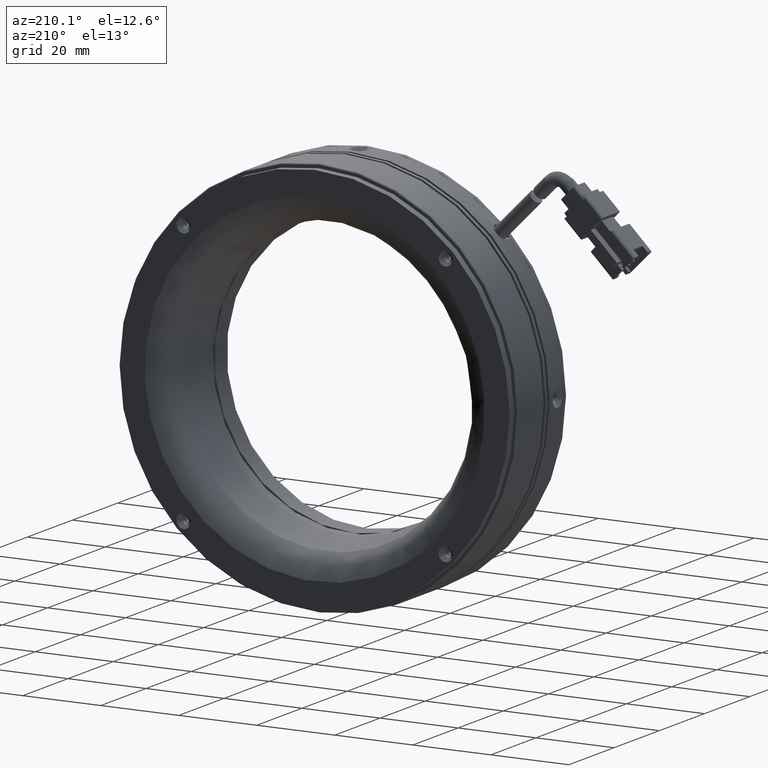
[diagram: clean part render]
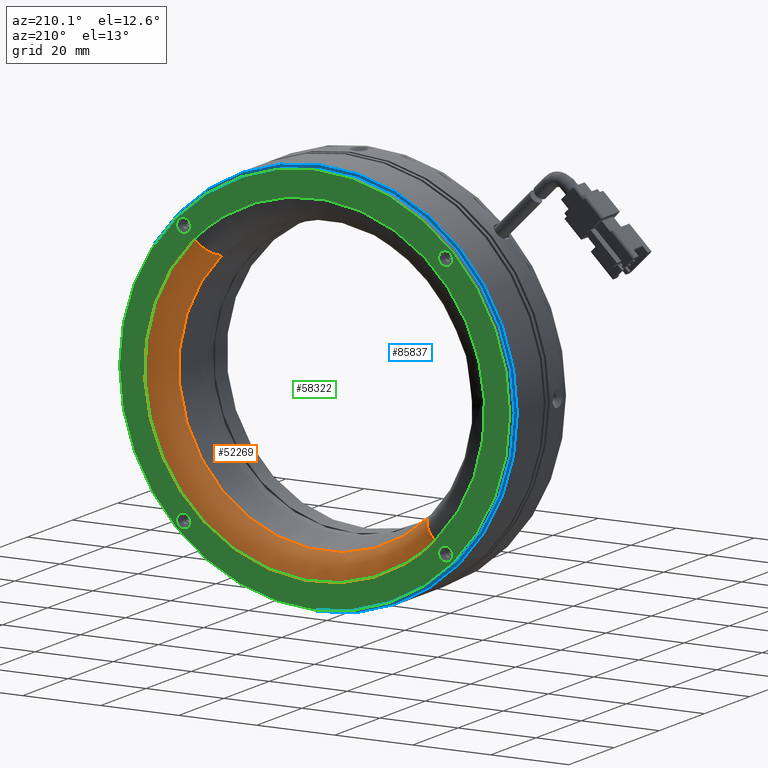
[diagram: same view with three faces highlighted in distinct colors, each labeled with its STEP entity id]
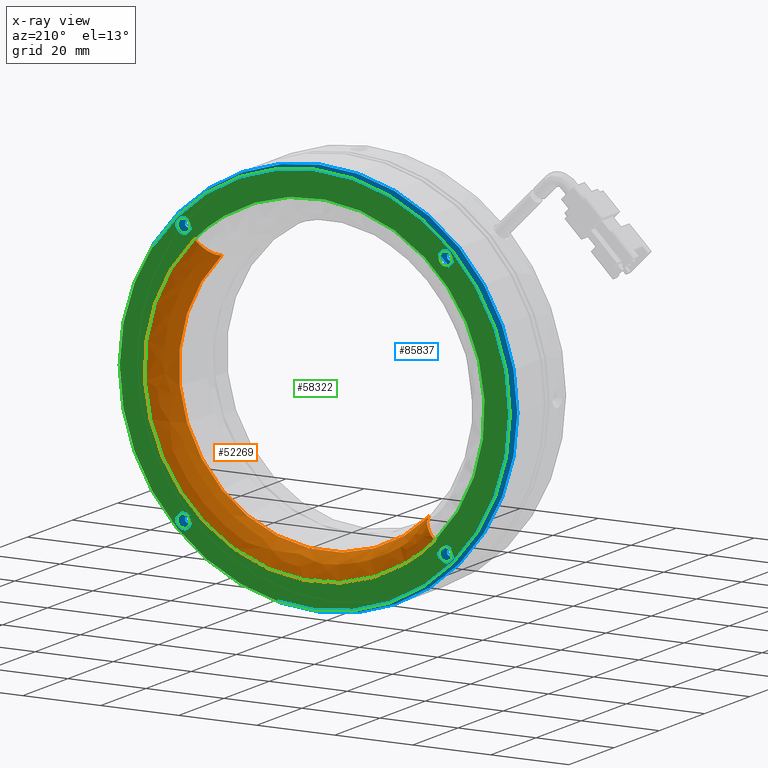
[diagram: x-ray of the same camera — body ghosted, the three highlighted faces saturated]
A machine part, auxiliary view with three faces highlighted in distinct colors.
The next image is the same camera in x-ray (body ghosted, the three faces saturated) — at least one of them is partly hidden behind the body in this view.
Their STEP definitions:

[orange] entity #52269 — the highlighted face is a freeform B-spline surface patch.
#4335 = CIRCLE ( 'NONE', #26832, 6.000000000000000900 ) ;
#4865 = CARTESIAN_POINT ( 'NONE',  ( 3.317160594367525600E-013, 20.44903624052007300, 2.765983579064349600E-015 ) ) ;
#5692 = CARTESIAN_POINT ( 'NONE',  ( 27.02208363910200000, 23.44903624052008000, 27.02208363910159200 ) ) ;
#11085 = EDGE_CURVE ( 'NONE', #31171, #34181, #17760, .T. ) ;
#12192 = DIRECTION ( 'NONE',  ( -0.7071067811865485700, 0.0000000000000000000, -0.7071067811865465700 ) ) ;
#13041 = CARTESIAN_POINT ( 'NONE',  ( 26.64803762780652700, 20.44903624052007300, -79.94411288341899500 ) ) ;
#13737 = CARTESIAN_POINT ( 'NONE',  ( 30.82622306972681900, 25.40714717451851000, 30.82622306972639200 ) ) ;
#14056 = CARTESIAN_POINT ( 'NONE',  ( 30.82622306972662700, 25.40714717451852100, -92.47866920917934400 ) ) ;
#17258 = DIRECTION ( 'NONE',  ( 0.7071067811865464600, -1.045514168352553600E-021, -0.7071067811865485700 ) ) ;
#17760 = CIRCLE ( 'NONE', #40874, 5.999999999999998200 ) ;
#19997 = CARTESIAN_POINT ( 'NONE',  ( 92.47866920917957100, 25.40714717451851000, -30.82622306972656300 ) ) ;
#20322 = CARTESIAN_POINT ( 'NONE',  ( 26.64803762780669100, 20.44903624052007300, 26.64803762780628200 ) ) ;
#22804 = EDGE_CURVE ( 'NONE', #27731, #34181, #40334, .T. ) ;
#26832 = AXIS2_PLACEMENT_3D ( 'NONE', #60726, #17258, #68047 ) ;
#27299 = CARTESIAN_POINT ( 'NONE',  ( -28.67217794054106500, 25.40714717451851000, -28.67217794054131000 ) ) ;
#27731 = VERTEX_POINT ( 'NONE', #37940 ) ;
#29988 = ORIENTED_EDGE ( 'NONE', *, *, #68258, .T. ) ;
#30658 = CARTESIAN_POINT ( 'NONE',  ( 30.82622306972681500, 19.40714717451851000, 30.82622306972639200 ) ) ;
#31171 = VERTEX_POINT ( 'NONE', #65485 ) ;
#34181 = VERTEX_POINT ( 'NONE', #77211 ) ;
#34645 = CARTESIAN_POINT ( 'NONE',  ( 86.01653382162433600, 25.40714717451850600, -28.67217794054146700 ) ) ;
#37940 = CARTESIAN_POINT ( 'NONE',  ( -26.64803762780602300, 20.44903624052007300, -26.64803762780628200 ) ) ;
#37973 = DIRECTION ( 'NONE',  ( 0.7071067811865486800, 0.0000000000000000000, 0.7071067811865463500 ) ) ;
#39791 = ORIENTED_EDGE ( 'NONE', *, *, #60507, .T. ) ;
#40334 = CIRCLE ( 'NONE', #44470, 37.68601622387225100 ) ;
#40874 = AXIS2_PLACEMENT_3D ( 'NONE', #30658, #81525, #37973 ) ;
#41942 = CARTESIAN_POINT ( 'NONE',  ( -27.02208363910133600, 23.44903624052008000, -27.02208363910158400 ) ) ;
#44470 = AXIS2_PLACEMENT_3D ( 'NONE', #4865, #55762, #12192 ) ;
#49231 = CARTESIAN_POINT ( 'NONE',  ( 81.06625091730516900, 23.44903624052008300, -27.02208363910173700 ) ) ;
#52269 = ADVANCED_FACE ( 'NONE', ( #74402 ), #53547, .T. ) ;
#53547 =( BOUNDED_SURFACE ( )  B_SPLINE_SURFACE ( 3, 3, ( 
 ( #84845, #63539, #19997, #70859 ),
 ( #27299, #78188, #34645, #85486 ),
 ( #41942, #92811, #49231, #5692 ),
 ( #56587, #13041, #63840, #20322 ) ),
 .UNSPECIFIED., .F., .F., .F. ) 
 B_SPLINE_SURFACE_WITH_KNOTS ( ( 4, 4 ),
 ( 4, 4 ),
 ( 0.0000000000000000000, 1.000000000000000000 ),
 ( 0.0000000000000000000, 1.000000000000000000 ),
 .UNSPECIFIED. ) 
 GEOMETRIC_REPRESENTATION_ITEM ( )  RATIONAL_B_SPLINE_SURFACE ( (
 ( 1.000000000000000000, 0.3333333333333334300, 0.3333333333333334300, 1.000000000000000000),
 ( 0.8440296287459846400, 0.2813432095819949400, 0.2813432095819949400, 0.8440296287459846400),
 ( 0.8440296287459846400, 0.2813432095819949400, 0.2813432095819949400, 0.8440296287459846400),
 ( 1.000000000000000000, 0.3333333333333334300, 0.3333333333333334300, 1.000000000000000000) ) ) 
 REPRESENTATION_ITEM ( '' )  SURFACE ( )  );
#55762 = DIRECTION ( 'NONE',  ( 5.593399160027876600E-020, -1.000000000000000000, 5.741257191681600800E-020 ) ) ;
#56587 = CARTESIAN_POINT ( 'NONE',  ( -26.64803762780602600, 20.44903624052007300, -26.64803762780627800 ) ) ;
#57255 = CARTESIAN_POINT ( 'NONE',  ( 92.47866920917958600, 25.40714717451852100, -30.82622306972657400 ) ) ;
#59573 = VERTEX_POINT ( 'NONE', #87652 ) ;
#60507 = EDGE_CURVE ( 'NONE', #31171, #59573, #87227, .T. ) ;
#60726 = CARTESIAN_POINT ( 'NONE',  ( -30.82622306972614700, 19.40714717451851000, -30.82622306972638900 ) ) ;
#63539 = CARTESIAN_POINT ( 'NONE',  ( 30.82622306972662000, 25.40714717451851000, -92.47866920917933000 ) ) ;
#63840 = CARTESIAN_POINT ( 'NONE',  ( 79.94411288341923700, 20.44903624052007300, -26.64803762780642100 ) ) ;
#64867 = CARTESIAN_POINT ( 'NONE',  ( -30.82622306972614700, 25.40714717451851000, -30.82622306972638900 ) ) ;
#65485 = CARTESIAN_POINT ( 'NONE',  ( 30.82622306972681900, 25.40714717451851000, 30.82622306972639200 ) ) ;
#68047 = DIRECTION ( 'NONE',  ( -0.7071067811865483500, 0.0000000000000000000, -0.7071067811865465700 ) ) ;
#68258 = EDGE_CURVE ( 'NONE', #59573, #27731, #4335, .T. ) ;
#70859 = CARTESIAN_POINT ( 'NONE',  ( 30.82622306972681500, 25.40714717451851400, 30.82622306972639200 ) ) ;
#74402 = FACE_OUTER_BOUND ( 'NONE', #78801, .T. ) ;
#77211 = CARTESIAN_POINT ( 'NONE',  ( 26.64803762780669100, 20.44903624052007300, 26.64803762780628200 ) ) ;
#78188 = CARTESIAN_POINT ( 'NONE',  ( 28.67217794054154800, 25.40714717451850600, -86.01653382162409400 ) ) ;
#78801 = EDGE_LOOP ( 'NONE', ( #86615, #39791, #29988, #80702 ) ) ;
#80702 = ORIENTED_EDGE ( 'NONE', *, *, #22804, .T. ) ;
#81525 = DIRECTION ( 'NONE',  ( -0.7071067811865463500, 1.045514168352555100E-021, 0.7071067811865486800 ) ) ;
#84845 = CARTESIAN_POINT ( 'NONE',  ( -30.82622306972614700, 25.40714717451851400, -30.82622306972638900 ) ) ;
#85486 = CARTESIAN_POINT ( 'NONE',  ( 28.67217794054173300, 25.40714717451851000, 28.67217794054131400 ) ) ;
#86615 = ORIENTED_EDGE ( 'NONE', *, *, #11085, .F. ) ;
#87227 =( BOUNDED_CURVE ( )  B_SPLINE_CURVE ( 3, ( #13737, #57255, #14056, #64867 ),
 .UNSPECIFIED., .F., .F. ) 
 B_SPLINE_CURVE_WITH_KNOTS ( ( 4, 4 ),
 ( 0.0000000000000000000, 1.000000000000000000 ),
 .UNSPECIFIED. ) 
 CURVE ( )  GEOMETRIC_REPRESENTATION_ITEM ( )  RATIONAL_B_SPLINE_CURVE ( ( 1.000000000000000000, 0.3333333333333333700, 0.3333333333333333700, 1.000000000000000000 ) ) 
 REPRESENTATION_ITEM ( '' )  );
#87652 = CARTESIAN_POINT ( 'NONE',  ( -30.82622306972614700, 25.40714717451851000, -30.82622306972638900 ) ) ;
#92811 = CARTESIAN_POINT ( 'NONE',  ( 27.02208363910183000, 23.44903624052008300, -81.06625091730488500 ) ) ;

[blue] entity #85837 — the highlighted planar face has unit normal (-0, -1, 0).
#2363 = VERTEX_POINT ( 'NONE', #83702 ) ;
#3036 = PLANE ( 'NONE',  #65794 ) ;
#3393 = AXIS2_PLACEMENT_3D ( 'NONE', #38948, #89814, #46224 ) ;
#3528 = CARTESIAN_POINT ( 'NONE',  ( -33.58757210636110100, 23.40714717451880100, 33.58757210636058900 ) ) ;
#5309 = ORIENTED_EDGE ( 'NONE', *, *, #73857, .F. ) ;
#6371 = EDGE_LOOP ( 'NONE', ( #43061, #52717 ) ) ;
#6472 = EDGE_CURVE ( 'NONE', #54261, #2363, #46888, .T. ) ;
#6928 = AXIS2_PLACEMENT_3D ( 'NONE', #69334, #25805, #76685 ) ;
#7285 = CIRCLE ( 'NONE', #13099, 46.00000000000000700 ) ;
#8080 = VERTEX_POINT ( 'NONE', #49350 ) ;
#8570 = AXIS2_PLACEMENT_3D ( 'NONE', #73016, #29463, #80346 ) ;
#8803 = CARTESIAN_POINT ( 'NONE',  ( 35.92102448427688400, 23.40714717451851400, 35.92102448427670700 ) ) ;
#8834 = EDGE_CURVE ( 'NONE', #14312, #47264, #17106, .T. ) ;
#9700 = CARTESIAN_POINT ( 'NONE',  ( 32.52691193458144900, 23.40714717451851400, 32.52691193458125700 ) ) ;
#10848 = DIRECTION ( 'NONE',  ( -0.7071067811865475700, 0.0000000000000000000, -0.7071067811865475700 ) ) ;
#11930 = ORIENTED_EDGE ( 'NONE', *, *, #67233, .F. ) ;
#13099 = AXIS2_PLACEMENT_3D ( 'NONE', #42220, #93086, #49523 ) ;
#14312 = VERTEX_POINT ( 'NONE', #28480 ) ;
#15215 = AXIS2_PLACEMENT_3D ( 'NONE', #25654, #76543, #33006 ) ;
#15415 = ORIENTED_EDGE ( 'NONE', *, *, #6472, .F. ) ;
#17106 = CIRCLE ( 'NONE', #21115, 0.8249999999634395300 ) ;
#17210 = CARTESIAN_POINT ( 'NONE',  ( 33.58757210636153400, 23.40714717451841800, -33.58757210636082400 ) ) ;
#18420 = FACE_BOUND ( 'NONE', #91965, .T. ) ;
#19558 = ORIENTED_EDGE ( 'NONE', *, *, #91990, .F. ) ;
#21115 = AXIS2_PLACEMENT_3D ( 'NONE', #21870, #72724, #29156 ) ;
#21870 = CARTESIAN_POINT ( 'NONE',  ( -33.58757210636061100, 23.40714717451063700, -33.58757210636108000 ) ) ;
#22712 = AXIS2_PLACEMENT_3D ( 'NONE', #76552, #33018, #83853 ) ;
#24296 = EDGE_CURVE ( 'NONE', #67751, #8080, #93637, .T. ) ;
#24473 = DIRECTION ( 'NONE',  ( -0.7071067811865475700, 0.0000000000000000000, -0.7071067811865475700 ) ) ;
#24623 = DIRECTION ( 'NONE',  ( -1.679007573354061900E-019, -1.000000000000000000, 1.540743955509788700E-033 ) ) ;
#24869 = CARTESIAN_POINT ( 'NONE',  ( 33.00420901186829100, 23.40714717451841800, -34.17093520085406800 ) ) ;
#25654 = CARTESIAN_POINT ( 'NONE',  ( 3.317158939778004400E-013, 23.40714717451851400, 2.765813746307307400E-015 ) ) ;
#25805 = DIRECTION ( 'NONE',  ( 1.679007573354061900E-019, 1.000000000000000000, -1.540743955509788700E-033 ) ) ;
#26318 = ORIENTED_EDGE ( 'NONE', *, *, #24296, .F. ) ;
#28480 = CARTESIAN_POINT ( 'NONE',  ( -33.00420901190756200, 23.40714717451063700, -33.00420901190803100 ) ) ;
#29011 = CIRCLE ( 'NONE', #6928, 0.8249999999634395300 ) ;
#29156 = DIRECTION ( 'NONE',  ( -0.7071067811865432400, 0.0000000000000000000, -0.7071067811865516800 ) ) ;
#29463 = DIRECTION ( 'NONE',  ( 1.679007573354061900E-019, 1.000000000000000000, -1.540743955509788700E-033 ) ) ;
#31072 = VERTEX_POINT ( 'NONE', #79189 ) ;
#32015 = CARTESIAN_POINT ( 'NONE',  ( -33.58757210636110100, 23.40714717451880100, 33.58757210636058900 ) ) ;
#33006 = DIRECTION ( 'NONE',  ( -0.7071067811865460200, 0.0000000000000000000, -0.7071067811865489100 ) ) ;
#33018 = DIRECTION ( 'NONE',  ( 1.679007573354061900E-019, 1.000000000000000000, -1.540743955509788700E-033 ) ) ;
#33622 = EDGE_CURVE ( 'NONE', #8080, #67751, #29011, .T. ) ;
#33977 = AXIS2_PLACEMENT_3D ( 'NONE', #3528, #54404, #10848 ) ;
#34186 = EDGE_LOOP ( 'NONE', ( #76117, #11930 ) ) ;
#34315 = EDGE_CURVE ( 'NONE', #52221, #49592, #7285, .T. ) ;
#34861 = CIRCLE ( 'NONE', #60378, 0.8250000000202817300 ) ;
#36221 = DIRECTION ( 'NONE',  ( 1.679007573354061900E-019, 1.000000000000000000, -1.540743955509788700E-033 ) ) ;
#37382 = CIRCLE ( 'NONE', #33977, 0.8250000000202817300 ) ;
#37784 = FACE_BOUND ( 'NONE', #73535, .T. ) ;
#38425 = EDGE_LOOP ( 'NONE', ( #15415, #5309 ) ) ;
#38948 = CARTESIAN_POINT ( 'NONE',  ( 3.317158939778004400E-013, 23.40714717451851400, 2.765813746307307400E-015 ) ) ;
#39028 = CARTESIAN_POINT ( 'NONE',  ( -34.17093520081365900, 23.40714717451063700, -34.17093520081413500 ) ) ;
#39293 = DIRECTION ( 'NONE',  ( -0.7071067811865475700, 0.0000000000000000000, -0.7071067811865475700 ) ) ;
#39559 = DIRECTION ( 'NONE',  ( -1.679007573354061500E-019, -1.000000000000000000, 1.516669831204948200E-033 ) ) ;
#40924 = AXIS2_PLACEMENT_3D ( 'NONE', #32015, #82880, #39293 ) ;
#42220 = CARTESIAN_POINT ( 'NONE',  ( 3.317158939778004400E-013, 23.40714717451851400, 2.765813746307307400E-015 ) ) ;
#42477 = ORIENTED_EDGE ( 'NONE', *, *, #33622, .F. ) ;
#43061 = ORIENTED_EDGE ( 'NONE', *, *, #84163, .F. ) ;
#43470 = VERTEX_POINT ( 'NONE', #62650 ) ;
#44907 = VERTEX_POINT ( 'NONE', #83092 ) ;
#45363 = CIRCLE ( 'NONE', #84882, 0.8249999999634395300 ) ;
#46224 = DIRECTION ( 'NONE',  ( 0.7071067811865460200, 0.0000000000000000000, 0.7071067811865491300 ) ) ;
#46888 = CIRCLE ( 'NONE', #8570, 0.8250000000202817300 ) ;
#47004 = ORIENTED_EDGE ( 'NONE', *, *, #66633, .F. ) ;
#47264 = VERTEX_POINT ( 'NONE', #39028 ) ;
#49350 = CARTESIAN_POINT ( 'NONE',  ( 33.00420901190823000, 23.40714717452639000, 33.00420901190803800 ) ) ;
#49523 = DIRECTION ( 'NONE',  ( -0.7071067811865460200, 0.0000000000000000000, -0.7071067811865489100 ) ) ;
#49592 = VERTEX_POINT ( 'NONE', #9700 ) ;
#51535 = CIRCLE ( 'NONE', #40924, 0.8250000000202817300 ) ;
#52122 = ORIENTED_EDGE ( 'NONE', *, *, #8834, .F. ) ;
#52221 = VERTEX_POINT ( 'NONE', #69888 ) ;
#52717 = ORIENTED_EDGE ( 'NONE', *, *, #89052, .F. ) ;
#53105 = ORIENTED_EDGE ( 'NONE', *, *, #59760, .F. ) ;
#54261 = VERTEX_POINT ( 'NONE', #24869 ) ;
#54404 = DIRECTION ( 'NONE',  ( 1.679007573354061900E-019, 1.000000000000000000, -1.540743955509788700E-033 ) ) ;
#54840 = FACE_BOUND ( 'NONE', #62786, .T. ) ;
#56497 = AXIS2_PLACEMENT_3D ( 'NONE', #68159, #24623, #75501 ) ;
#57108 = FACE_BOUND ( 'NONE', #34186, .T. ) ;
#59760 = EDGE_CURVE ( 'NONE', #31072, #43470, #51535, .T. ) ;
#60378 = AXIS2_PLACEMENT_3D ( 'NONE', #17210, #67993, #24473 ) ;
#62650 = CARTESIAN_POINT ( 'NONE',  ( -33.00420901186785700, 23.40714717451880100, 34.17093520085384000 ) ) ;
#62786 = EDGE_LOOP ( 'NONE', ( #53105, #47004 ) ) ;
#65794 = AXIS2_PLACEMENT_3D ( 'NONE', #83147, #39559, #90459 ) ;
#66633 = EDGE_CURVE ( 'NONE', #43470, #31072, #37382, .T. ) ;
#67233 = EDGE_CURVE ( 'NONE', #49592, #52221, #78045, .T. ) ;
#67751 = VERTEX_POINT ( 'NONE', #91412 ) ;
#67993 = DIRECTION ( 'NONE',  ( 1.679007573354061900E-019, 1.000000000000000000, -1.540743955509788700E-033 ) ) ;
#68159 = CARTESIAN_POINT ( 'NONE',  ( 3.317158939778004400E-013, 23.40714717451851400, 2.765813746307307400E-015 ) ) ;
#69334 = CARTESIAN_POINT ( 'NONE',  ( 33.58757210636127900, 23.40714717452639000, 33.58757210636108000 ) ) ;
#69888 = CARTESIAN_POINT ( 'NONE',  ( -32.52691193458078800, 23.40714717451851400, -32.52691193458125700 ) ) ;
#72724 = DIRECTION ( 'NONE',  ( 1.679007573354061900E-019, 1.000000000000000000, -1.540743955509788700E-033 ) ) ;
#73016 = CARTESIAN_POINT ( 'NONE',  ( 33.58757210636153400, 23.40714717451841800, -33.58757210636082400 ) ) ;
#73535 = EDGE_LOOP ( 'NONE', ( #19558, #52122 ) ) ;
#73857 = EDGE_CURVE ( 'NONE', #2363, #54261, #34861, .T. ) ;
#74165 = FACE_OUTER_BOUND ( 'NONE', #6371, .T. ) ;
#74238 = CIRCLE ( 'NONE', #3393, 50.80000000000001800 ) ;
#74395 = CIRCLE ( 'NONE', #56497, 50.80000000000001800 ) ;
#75501 = DIRECTION ( 'NONE',  ( 0.7071067811865460200, 0.0000000000000000000, 0.7071067811865491300 ) ) ;
#76117 = ORIENTED_EDGE ( 'NONE', *, *, #34315, .F. ) ;
#76449 = FACE_BOUND ( 'NONE', #38425, .T. ) ;
#76543 = DIRECTION ( 'NONE',  ( 1.679007573354061900E-019, 1.000000000000000000, -1.540743955509788700E-033 ) ) ;
#76552 = CARTESIAN_POINT ( 'NONE',  ( 33.58757210636127900, 23.40714717452639000, 33.58757210636108000 ) ) ;
#76685 = DIRECTION ( 'NONE',  ( -0.7071067811865432400, 0.0000000000000000000, -0.7071067811865516800 ) ) ;
#78045 = CIRCLE ( 'NONE', #15215, 46.00000000000000700 ) ;
#79083 = VERTEX_POINT ( 'NONE', #8803 ) ;
#79189 = CARTESIAN_POINT ( 'NONE',  ( -34.17093520085434500, 23.40714717451880100, 33.00420901186733900 ) ) ;
#79762 = CARTESIAN_POINT ( 'NONE',  ( -33.58757210636061100, 23.40714717451063700, -33.58757210636108000 ) ) ;
#80346 = DIRECTION ( 'NONE',  ( -0.7071067811865475700, 0.0000000000000000000, -0.7071067811865475700 ) ) ;
#82880 = DIRECTION ( 'NONE',  ( 1.679007573354061900E-019, 1.000000000000000000, -1.540743955509788700E-033 ) ) ;
#83092 = CARTESIAN_POINT ( 'NONE',  ( -35.92102448427621700, 23.40714717451851400, -35.92102448427670000 ) ) ;
#83147 = CARTESIAN_POINT ( 'NONE',  ( 3.317158939778004400E-013, 23.40714717451851400, 2.765813746307307400E-015 ) ) ;
#83702 = CARTESIAN_POINT ( 'NONE',  ( 34.17093520085477800, 23.40714717451841800, -33.00420901186758000 ) ) ;
#83853 = DIRECTION ( 'NONE',  ( -0.7071067811865432400, 0.0000000000000000000, -0.7071067811865516800 ) ) ;
#84163 = EDGE_CURVE ( 'NONE', #79083, #44907, #74238, .T. ) ;
#84882 = AXIS2_PLACEMENT_3D ( 'NONE', #79762, #36221, #87051 ) ;
#85837 = ADVANCED_FACE ( 'NONE', ( #57108, #74165, #37784, #76449, #18420, #54840 ), #3036, .F. ) ;
#87051 = DIRECTION ( 'NONE',  ( -0.7071067811865432400, 0.0000000000000000000, -0.7071067811865516800 ) ) ;
#89052 = EDGE_CURVE ( 'NONE', #44907, #79083, #74395, .T. ) ;
#89814 = DIRECTION ( 'NONE',  ( -1.679007573354061900E-019, -1.000000000000000000, 1.540743955509788700E-033 ) ) ;
#90459 = DIRECTION ( 'NONE',  ( 0.7071067811865460200, -1.187237640782213300E-019, 0.7071067811865490200 ) ) ;
#91412 = CARTESIAN_POINT ( 'NONE',  ( 34.17093520081432000, 23.40714717452639000, 34.17093520081412800 ) ) ;
#91965 = EDGE_LOOP ( 'NONE', ( #42477, #26318 ) ) ;
#91990 = EDGE_CURVE ( 'NONE', #47264, #14312, #45363, .T. ) ;
#93086 = DIRECTION ( 'NONE',  ( 1.679007573354061900E-019, 1.000000000000000000, -1.540743955509788700E-033 ) ) ;
#93637 = CIRCLE ( 'NONE', #22712, 0.8249999999634395300 ) ;

[green] entity #58322 — the highlighted planar face has unit normal (0, -1, 0).
#82 = CIRCLE ( 'NONE', #84201, 1.800000000002912200 ) ;
#900 = ORIENTED_EDGE ( 'NONE', *, *, #78186, .F. ) ;
#1824 = ORIENTED_EDGE ( 'NONE', *, *, #7874, .F. ) ;
#2266 = VERTEX_POINT ( 'NONE', #62688 ) ;
#2452 = EDGE_CURVE ( 'NONE', #18655, #2882, #93534, .T. ) ;
#2882 = VERTEX_POINT ( 'NONE', #45646 ) ;
#2950 = DIRECTION ( 'NONE',  ( -5.593399160027876600E-020, 1.000000000000000000, -5.741257191681600800E-020 ) ) ;
#4277 = DIRECTION ( 'NONE',  ( -0.7071067811865486800, -8.014812368712944100E-020, -0.7071067811865464600 ) ) ;
#6781 = DIRECTION ( 'NONE',  ( 0.7071067811865474600, 0.0000000000000000000, 0.7071067811865474600 ) ) ;
#7312 = CARTESIAN_POINT ( 'NONE',  ( -30.82622306972614700, 25.40714717451851000, -30.82622306972638900 ) ) ;
#7576 = CARTESIAN_POINT ( 'NONE',  ( 3.317157821098172500E-013, 25.40714717451851700, 2.765698921163779800E-015 ) ) ;
#7874 = EDGE_CURVE ( 'NONE', #13309, #61277, #17440, .T. ) ;
#8855 = DIRECTION ( 'NONE',  ( -5.593399160027876600E-020, 1.000000000000000000, -5.741257191681600800E-020 ) ) ;
#11222 = FACE_BOUND ( 'NONE', #32923, .T. ) ;
#11549 = AXIS2_PLACEMENT_3D ( 'NONE', #46469, #2950, #53809 ) ;
#12038 = CARTESIAN_POINT ( 'NONE',  ( 33.58757210636129300, 25.40714717452704700, -33.58757210636105800 ) ) ;
#13309 = VERTEX_POINT ( 'NONE', #16947 ) ;
#13522 = FACE_OUTER_BOUND ( 'NONE', #79168, .T. ) ;
#13737 = CARTESIAN_POINT ( 'NONE',  ( 30.82622306972681900, 25.40714717451851000, 30.82622306972639200 ) ) ;
#14056 = CARTESIAN_POINT ( 'NONE',  ( 30.82622306972662700, 25.40714717451852100, -92.47866920917934400 ) ) ;
#14953 = DIRECTION ( 'NONE',  ( -0.7071067811865485700, 0.0000000000000000000, -0.7071067811865464600 ) ) ;
#15685 = VERTEX_POINT ( 'NONE', #46314 ) ;
#16659 = CIRCLE ( 'NONE', #43995, 50.00000000000000700 ) ;
#16947 = CARTESIAN_POINT ( 'NONE',  ( -34.86036431249844700, 25.40714717448384600, -34.86036431249892300 ) ) ;
#17440 = CIRCLE ( 'NONE', #48903, 1.800000000002912200 ) ;
#18339 = DIRECTION ( 'NONE',  ( 6.814078067718189300E-016, 1.000000000000000000, -6.815211533353380900E-016 ) ) ;
#18655 = VERTEX_POINT ( 'NONE', #59194 ) ;
#19058 = DIRECTION ( 'NONE',  ( 5.593399160027876600E-020, -1.000000000000000000, 5.741257191681600800E-020 ) ) ;
#19354 = DIRECTION ( 'NONE',  ( 0.7071067811865474600, 0.0000000000000000000, 0.7071067811865474600 ) ) ;
#22972 = DIRECTION ( 'NONE',  ( 6.814078067718189300E-016, 1.000000000000000000, -6.815211533353380900E-016 ) ) ;
#28849 = CIRCLE ( 'NONE', #80468, 1.800000000002912200 ) ;
#28859 = ORIENTED_EDGE ( 'NONE', *, *, #55937, .F. ) ;
#29007 = AXIS2_PLACEMENT_3D ( 'NONE', #66523, #22972, #73867 ) ;
#30553 = FACE_BOUND ( 'NONE', #39330, .T. ) ;
#31171 = VERTEX_POINT ( 'NONE', #65485 ) ;
#31885 = EDGE_CURVE ( 'NONE', #50071, #15685, #82029, .T. ) ;
#32010 = CIRCLE ( 'NONE', #29007, 1.800000000073394400 ) ;
#32848 = FACE_BOUND ( 'NONE', #41010, .T. ) ;
#32923 = EDGE_LOOP ( 'NONE', ( #36244, #28859 ) ) ;
#34838 = AXIS2_PLACEMENT_3D ( 'NONE', #7576, #58443, #14953 ) ;
#36244 = ORIENTED_EDGE ( 'NONE', *, *, #55005, .F. ) ;
#36282 = CARTESIAN_POINT ( 'NONE',  ( -92.47866920917891800, 25.40714717451852100, 30.82622306972657400 ) ) ;
#36591 = CARTESIAN_POINT ( 'NONE',  ( 30.82622306972681900, 25.40714717451851000, 30.82622306972639200 ) ) ;
#39330 = EDGE_LOOP ( 'NONE', ( #73669, #1824 ) ) ;
#39410 = CARTESIAN_POINT ( 'NONE',  ( 32.31477990022344900, 25.40714717452704700, -34.86036431249890200 ) ) ;
#39834 = CARTESIAN_POINT ( 'NONE',  ( -33.58757210636060400, 25.40714717448384600, -33.58757210636107300 ) ) ;
#40283 = EDGE_CURVE ( 'NONE', #59573, #31171, #46022, .T. ) ;
#41010 = EDGE_LOOP ( 'NONE', ( #87409, #92425 ) ) ;
#43995 = AXIS2_PLACEMENT_3D ( 'NONE', #62568, #19058, #69879 ) ;
#45201 = CARTESIAN_POINT ( 'NONE',  ( 32.31477990017335600, 25.40714717458389400, 34.86036431254899500 ) ) ;
#45646 = CARTESIAN_POINT ( 'NONE',  ( -32.31477990022278100, 25.40714717452704700, 34.86036431249890200 ) ) ;
#46022 =( BOUNDED_CURVE ( )  B_SPLINE_CURVE ( 3, ( #7312, #36282, #80131, #36591 ),
 .UNSPECIFIED., .F., .F. ) 
 B_SPLINE_CURVE_WITH_KNOTS ( ( 4, 4 ),
 ( 0.0000000000000000000, 1.000000000000000000 ),
 .UNSPECIFIED. ) 
 CURVE ( )  GEOMETRIC_REPRESENTATION_ITEM ( )  RATIONAL_B_SPLINE_CURVE ( ( 1.000000000000000000, 0.3333333333333333700, 0.3333333333333333700, 1.000000000000000000 ) ) 
 REPRESENTATION_ITEM ( '' )  );
#46314 = CARTESIAN_POINT ( 'NONE',  ( 34.86036431254871100, 25.40714717458388700, 32.31477990017362600 ) ) ;
#46469 = CARTESIAN_POINT ( 'NONE',  ( -33.58757210636062500, 25.40714717452704700, 33.58757210636105800 ) ) ;
#46492 = CARTESIAN_POINT ( 'NONE',  ( -32.31477990022276000, 25.40714717448384600, -32.31477990022322900 ) ) ;
#47152 = DIRECTION ( 'NONE',  ( 0.7071067811865474600, 0.0000000000000000000, 0.7071067811865474600 ) ) ;
#47820 = DIRECTION ( 'NONE',  ( 5.593399160027875400E-020, -1.000000000000000000, 5.741257191681599600E-020 ) ) ;
#48903 = AXIS2_PLACEMENT_3D ( 'NONE', #39834, #90758, #47152 ) ;
#49869 = FACE_BOUND ( 'NONE', #70463, .T. ) ;
#50071 = VERTEX_POINT ( 'NONE', #45201 ) ;
#50286 = VERTEX_POINT ( 'NONE', #55045 ) ;
#50312 = DIRECTION ( 'NONE',  ( -5.593399160027876600E-020, 1.000000000000000000, -5.741257191681600800E-020 ) ) ;
#52204 = AXIS2_PLACEMENT_3D ( 'NONE', #70928, #70608, #70288 ) ;
#52372 = CARTESIAN_POINT ( 'NONE',  ( -33.58757210636060400, 25.40714717448384600, -33.58757210636107300 ) ) ;
#53809 = DIRECTION ( 'NONE',  ( 0.7071067811865474600, 0.0000000000000000000, 0.7071067811865474600 ) ) ;
#55005 = EDGE_CURVE ( 'NONE', #2266, #76096, #81329, .T. ) ;
#55045 = CARTESIAN_POINT ( 'NONE',  ( 35.35533905932776800, 25.40714717451851700, 35.35533905932732100 ) ) ;
#55200 = EDGE_CURVE ( 'NONE', #61277, #13309, #28849, .T. ) ;
#55937 = EDGE_CURVE ( 'NONE', #76096, #2266, #82, .T. ) ;
#57255 = CARTESIAN_POINT ( 'NONE',  ( 92.47866920917958600, 25.40714717451852100, -30.82622306972657400 ) ) ;
#57779 = AXIS2_PLACEMENT_3D ( 'NONE', #91427, #47820, #4277 ) ;
#58322 = ADVANCED_FACE ( 'NONE', ( #49869, #13522, #32848, #30553, #11222, #86288 ), #62104, .F. ) ;
#58443 = DIRECTION ( 'NONE',  ( 5.593399160027876600E-020, -1.000000000000000000, 5.741257191681600800E-020 ) ) ;
#58775 = EDGE_CURVE ( 'NONE', #2882, #18655, #81665, .T. ) ;
#59194 = CARTESIAN_POINT ( 'NONE',  ( -34.86036431249846900, 25.40714717452704700, 32.31477990022320800 ) ) ;
#59573 = VERTEX_POINT ( 'NONE', #87652 ) ;
#59647 = DIRECTION ( 'NONE',  ( 0.7071067811865474600, 0.0000000000000000000, 0.7071067811865474600 ) ) ;
#60507 = EDGE_CURVE ( 'NONE', #31171, #59573, #87227, .T. ) ;
#61277 = VERTEX_POINT ( 'NONE', #46492 ) ;
#61838 = CARTESIAN_POINT ( 'NONE',  ( 33.58757210636103700, 25.40714717458389100, 33.58757210636131400 ) ) ;
#62104 = PLANE ( 'NONE',  #57779 ) ;
#62482 = ORIENTED_EDGE ( 'NONE', *, *, #31885, .F. ) ;
#62568 = CARTESIAN_POINT ( 'NONE',  ( 3.317157821098172500E-013, 25.40714717451851700, 2.765698921163779800E-015 ) ) ;
#62688 = CARTESIAN_POINT ( 'NONE',  ( 34.86036431249913600, 25.40714717452704700, -32.31477990022320800 ) ) ;
#62851 = DIRECTION ( 'NONE',  ( -5.593399160027876600E-020, 1.000000000000000000, -5.741257191681600800E-020 ) ) ;
#64867 = CARTESIAN_POINT ( 'NONE',  ( -30.82622306972614700, 25.40714717451851000, -30.82622306972638900 ) ) ;
#65485 = CARTESIAN_POINT ( 'NONE',  ( 30.82622306972681900, 25.40714717451851000, 30.82622306972639200 ) ) ;
#66523 = CARTESIAN_POINT ( 'NONE',  ( 33.58757210636103700, 25.40714717458389100, 33.58757210636131400 ) ) ;
#68667 = ORIENTED_EDGE ( 'NONE', *, *, #84456, .F. ) ;
#69150 = DIRECTION ( 'NONE',  ( -0.7071067811865455700, 1.927470528784527100E-015, 0.7071067811865495700 ) ) ;
#69879 = DIRECTION ( 'NONE',  ( -0.7071067811865485700, 0.0000000000000000000, -0.7071067811865464600 ) ) ;
#70288 = DIRECTION ( 'NONE',  ( 0.7071067811865474600, 0.0000000000000000000, 0.7071067811865474600 ) ) ;
#70462 = ORIENTED_EDGE ( 'NONE', *, *, #60507, .F. ) ;
#70463 = EDGE_LOOP ( 'NONE', ( #71706, #70462 ) ) ;
#70608 = DIRECTION ( 'NONE',  ( -5.593399160027876600E-020, 1.000000000000000000, -5.741257191681600800E-020 ) ) ;
#70928 = CARTESIAN_POINT ( 'NONE',  ( -33.58757210636062500, 25.40714717452704700, 33.58757210636105800 ) ) ;
#71706 = ORIENTED_EDGE ( 'NONE', *, *, #40283, .F. ) ;
#71791 = ORIENTED_EDGE ( 'NONE', *, *, #73985, .F. ) ;
#73669 = ORIENTED_EDGE ( 'NONE', *, *, #55200, .F. ) ;
#73867 = DIRECTION ( 'NONE',  ( -0.7071067811865455700, 1.927470528784527100E-015, 0.7071067811865495700 ) ) ;
#73985 = EDGE_CURVE ( 'NONE', #50286, #88947, #16659, .T. ) ;
#76096 = VERTEX_POINT ( 'NONE', #39410 ) ;
#78186 = EDGE_CURVE ( 'NONE', #88947, #50286, #87339, .T. ) ;
#78252 = CARTESIAN_POINT ( 'NONE',  ( -35.35533905932710000, 25.40714717451851700, -35.35533905932732800 ) ) ;
#79168 = EDGE_LOOP ( 'NONE', ( #900, #71791 ) ) ;
#80131 = CARTESIAN_POINT ( 'NONE',  ( -30.82622306972595500, 25.40714717451852100, 92.47866920917935800 ) ) ;
#80468 = AXIS2_PLACEMENT_3D ( 'NONE', #52372, #8855, #59647 ) ;
#81329 = CIRCLE ( 'NONE', #88946, 1.800000000002912200 ) ;
#81665 = CIRCLE ( 'NONE', #11549, 1.800000000002912200 ) ;
#82029 = CIRCLE ( 'NONE', #94333, 1.800000000073394400 ) ;
#84201 = AXIS2_PLACEMENT_3D ( 'NONE', #93884, #50312, #6781 ) ;
#84456 = EDGE_CURVE ( 'NONE', #15685, #50071, #32010, .T. ) ;
#84999 = EDGE_LOOP ( 'NONE', ( #62482, #68667 ) ) ;
#86288 = FACE_BOUND ( 'NONE', #84999, .T. ) ;
#87227 =( BOUNDED_CURVE ( )  B_SPLINE_CURVE ( 3, ( #13737, #57255, #14056, #64867 ),
 .UNSPECIFIED., .F., .F. ) 
 B_SPLINE_CURVE_WITH_KNOTS ( ( 4, 4 ),
 ( 0.0000000000000000000, 1.000000000000000000 ),
 .UNSPECIFIED. ) 
 CURVE ( )  GEOMETRIC_REPRESENTATION_ITEM ( )  RATIONAL_B_SPLINE_CURVE ( ( 1.000000000000000000, 0.3333333333333333700, 0.3333333333333333700, 1.000000000000000000 ) ) 
 REPRESENTATION_ITEM ( '' )  );
#87339 = CIRCLE ( 'NONE', #34838, 50.00000000000000700 ) ;
#87409 = ORIENTED_EDGE ( 'NONE', *, *, #58775, .F. ) ;
#87652 = CARTESIAN_POINT ( 'NONE',  ( -30.82622306972614700, 25.40714717451851000, -30.82622306972638900 ) ) ;
#88946 = AXIS2_PLACEMENT_3D ( 'NONE', #12038, #62851, #19354 ) ;
#88947 = VERTEX_POINT ( 'NONE', #78252 ) ;
#90758 = DIRECTION ( 'NONE',  ( -5.593399160027876600E-020, 1.000000000000000000, -5.741257191681600800E-020 ) ) ;
#91427 = CARTESIAN_POINT ( 'NONE',  ( -35.35533905932699400, 25.40714717451851700, 35.35533905932743400 ) ) ;
#92425 = ORIENTED_EDGE ( 'NONE', *, *, #2452, .F. ) ;
#93534 = CIRCLE ( 'NONE', #52204, 1.800000000002912200 ) ;
#93884 = CARTESIAN_POINT ( 'NONE',  ( 33.58757210636129300, 25.40714717452704700, -33.58757210636105800 ) ) ;
#94333 = AXIS2_PLACEMENT_3D ( 'NONE', #61838, #18339, #69150 ) ;